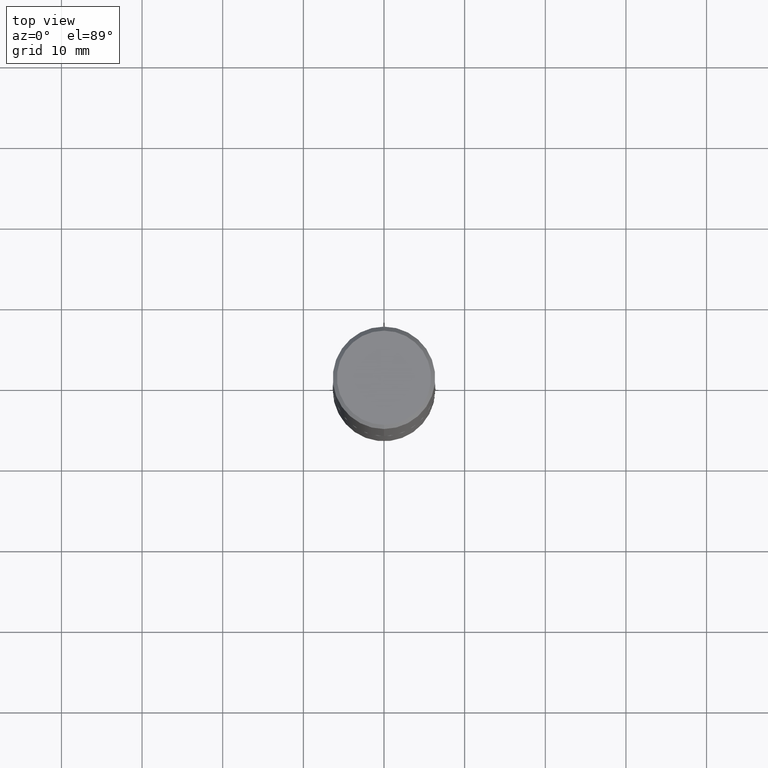
[diagram: clean part render]
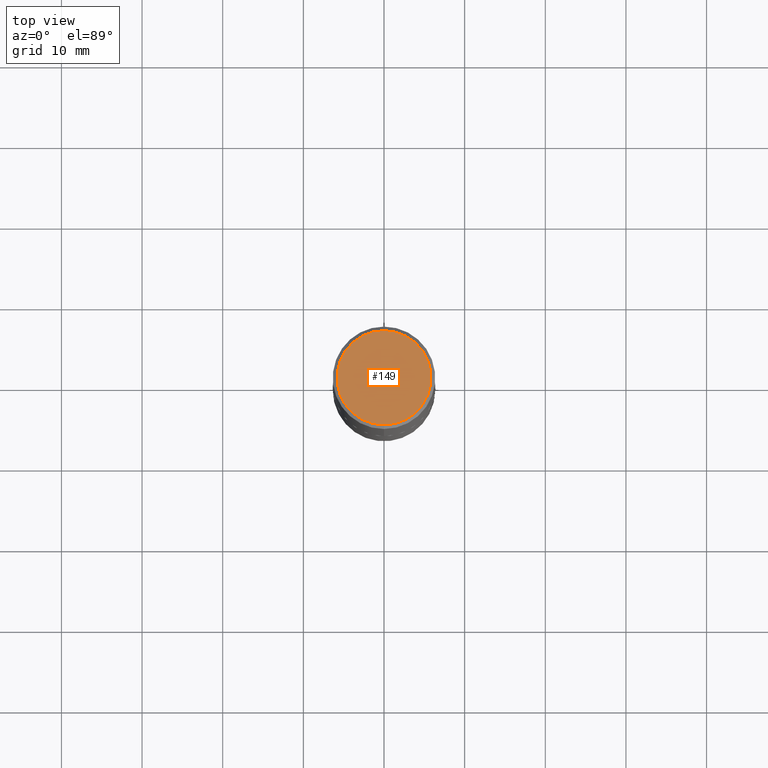
[diagram: same view with one face highlighted and labeled with its STEP entity id]
A machine part, top view. The second image highlights one B-rep face of the part: STEP entity #149.
In plain terms, the highlighted planar face has unit normal (0, -0, -1).
Its self-contained STEP definition (entity closure, byte-faithful):
#20 = CIRCLE ( 'NONE', #254, 0.2299999999999997047 ) ;
#43 = ORIENTED_EDGE ( 'NONE', *, *, #183, .T. ) ;
#70 = VERTEX_POINT ( 'NONE', #146 ) ;
#80 = CARTESIAN_POINT ( 'NONE',  ( 1.606081415867839095E-15, 0.2299999999999997047, -6.474688858455407103E-16 ) ) ;
#146 = CARTESIAN_POINT ( 'NONE',  ( -1.646519519465166376E-15, -0.2299999999999997047, 1.115557654912385711E-15 ) ) ;
#149 = ADVANCED_FACE ( 'NONE', ( #212 ), #202, .F. ) ;
#173 = DIRECTION ( 'NONE',  ( 2.444078991372175283E-29, -3.493471632758652550E-15, -1.000000000000000000 ) ) ;
#183 = EDGE_CURVE ( 'NONE', #300, #70, #20, .T. ) ;
#185 = DIRECTION ( 'NONE',  ( 6.982962677686265922E-15, 1.000000000000000000, -3.493471632758652550E-15 ) ) ;
#202 = PLANE ( 'NONE',  #331 ) ;
#203 = CARTESIAN_POINT ( 'NONE',  ( 1.675911042644703182E-15, 0.2299999999999997047, -4.914392961565924424E-16 ) ) ;
#212 = FACE_OUTER_BOUND ( 'NONE', #391, .T. ) ;
#215 = DIRECTION ( 'NONE',  ( -2.444078991372175563E-29, 3.493471632758652550E-15, 1.000000000000000000 ) ) ;
#216 = DIRECTION ( 'NONE',  ( -2.444078991372175563E-29, 3.493471632758652550E-15, 1.000000000000000000 ) ) ;
#250 = DIRECTION ( 'NONE',  ( -6.982962677686265922E-15, -1.000000000000000000, 3.493471632758652550E-15 ) ) ;
#254 = AXIS2_PLACEMENT_3D ( 'NONE', #315, #215, #250 ) ;
#294 = ORIENTED_EDGE ( 'NONE', *, *, #354, .T. ) ;
#300 = VERTEX_POINT ( 'NONE', #203 ) ;
#315 = CARTESIAN_POINT ( 'NONE',  ( -7.626972843823584403E-45, 1.090169890898625670E-30, 3.120591793778966343E-16 ) ) ;
#331 = AXIS2_PLACEMENT_3D ( 'NONE', #80, #173, #185 ) ;
#346 = DIRECTION ( 'NONE',  ( -6.982962677686265922E-15, -1.000000000000000000, 3.493471632758652550E-15 ) ) ;
#354 = EDGE_CURVE ( 'NONE', #70, #300, #380, .T. ) ;
#380 = CIRCLE ( 'NONE', #402, 0.2299999999999997047 ) ;
#391 = EDGE_LOOP ( 'NONE', ( #43, #294 ) ) ;
#402 = AXIS2_PLACEMENT_3D ( 'NONE', #414, #216, #346 ) ;
#414 = CARTESIAN_POINT ( 'NONE',  ( -7.626972843823584403E-45, 1.090169890898625670E-30, 3.120591793778966343E-16 ) ) ;